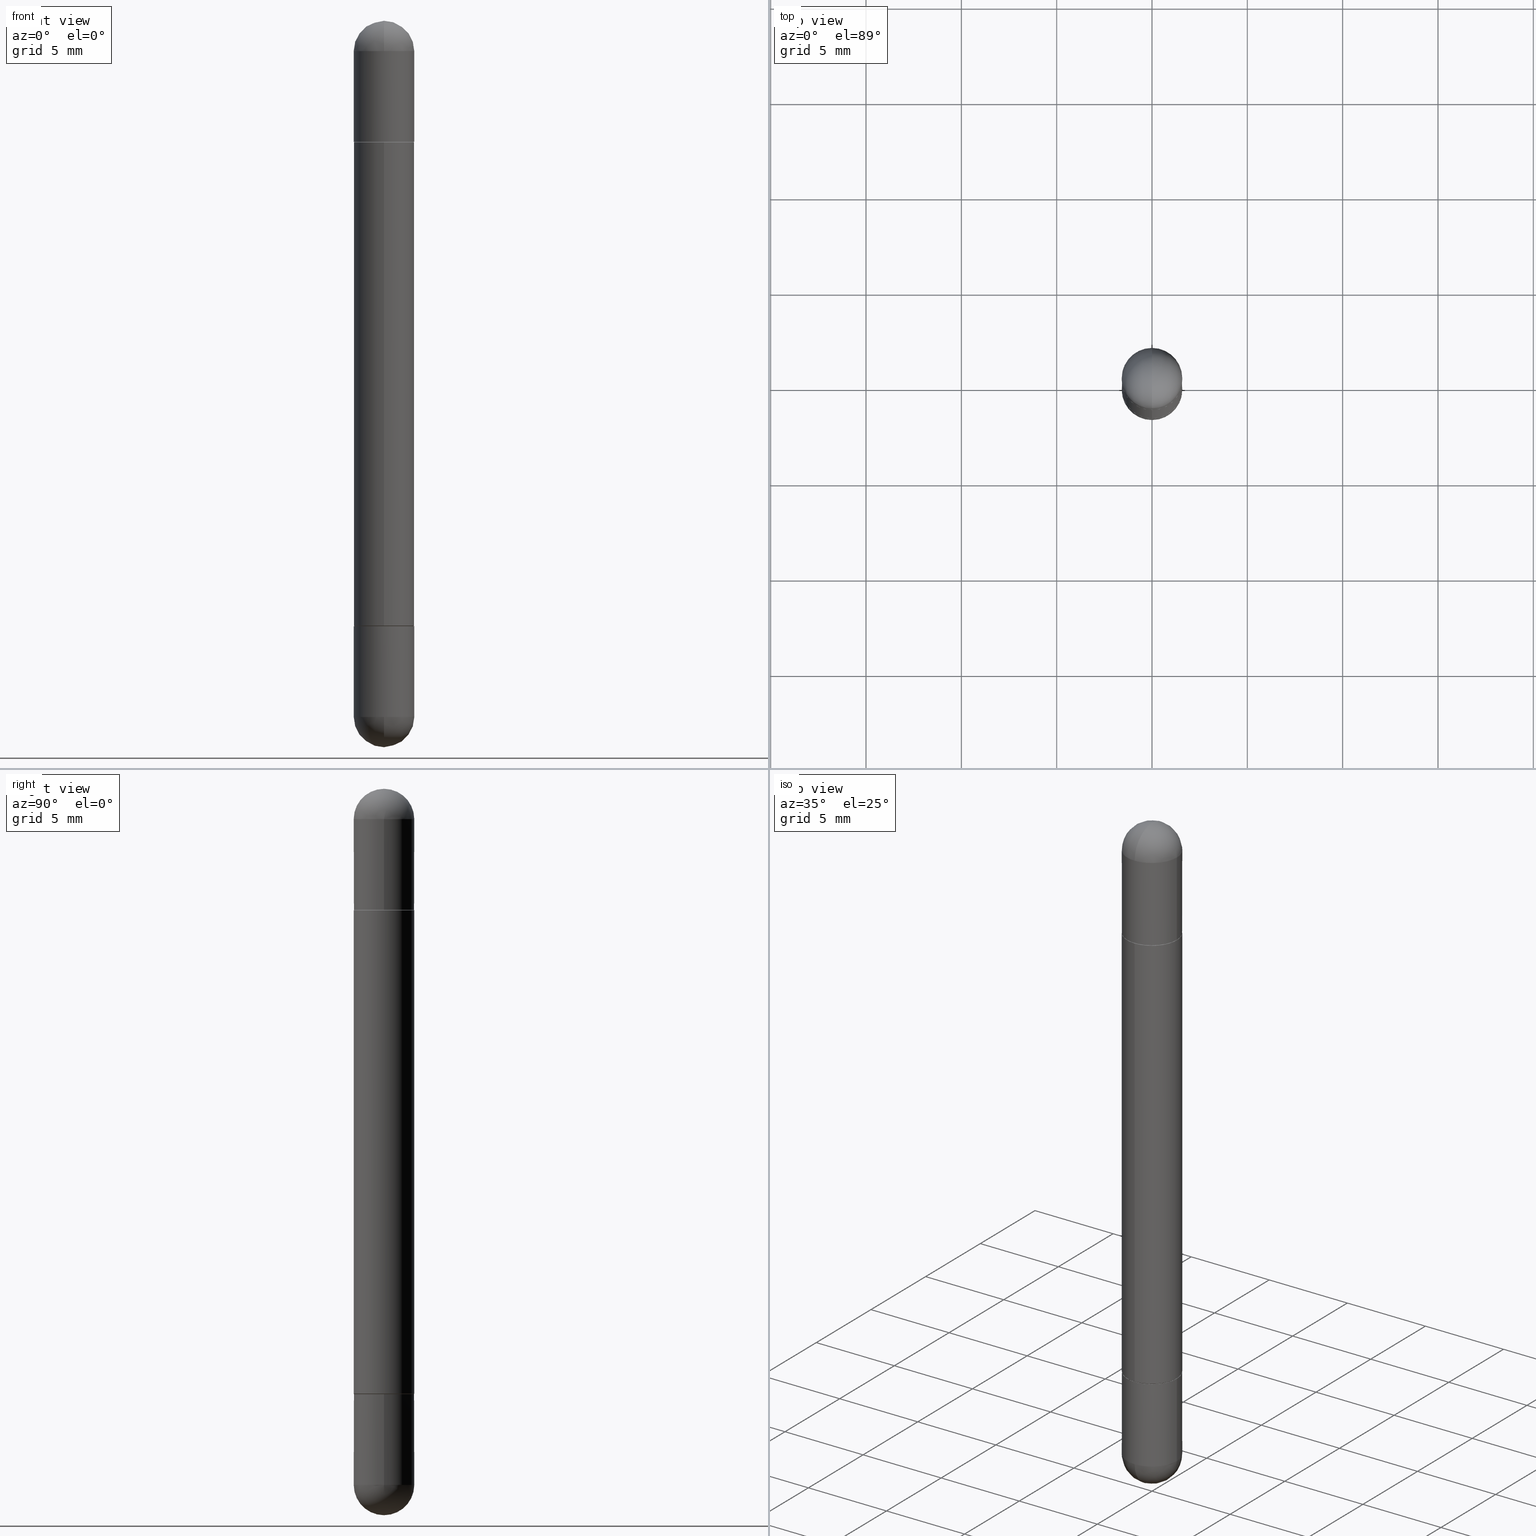
[diagram: canonical four-view strip — front | top / right | iso, engineering-drawing reading convention]
A machine part, canonical four-view strip (front | top / right | iso — engineering-drawing reading convention). The complete STEP part file that produces these views, byte-faithful:
ISO-10303-21;
HEADER;
FILE_DESCRIPTION (( 'STEP AP203' ),
    '1' );
FILE_NAME ('31454.STEP',
    '2024-03-01T12:41:56',
    ( '' ),
    ( '' ),
    'SwSTEP 2.0',
    'SolidWorks 2023',
    '' );
FILE_SCHEMA (( 'CONFIG_CONTROL_DESIGN' ));
ENDSEC;

DATA;
#1 = DIRECTION ( 'NONE',  ( 1.000000000000000000, -6.982962677686261189E-15, 0.000000000000000000 ) ) ;
#2 = DIRECTION ( 'NONE',  ( -2.436379544779364188E-29, 3.504497678504843600E-15, -1.000000000000000000 ) ) ;
#3 = ORIENTED_EDGE ( 'NONE', *, *, #719, .T. ) ;
#4 = FACE_OUTER_BOUND ( 'NONE', #203, .T. ) ;
#5 = DIRECTION ( 'NONE',  ( 1.000000000000000000, -6.982962677686261189E-15, 0.000000000000000000 ) ) ;
#6 = CIRCLE ( 'NONE', #219, 0.06150000000000003381 ) ;
#7 = ADVANCED_FACE ( 'NONE', ( #225 ), #217, .T. ) ;
#8 = CONICAL_SURFACE ( 'NONE', #459, 0.06150000000000003381, 0.7853981633974995713 ) ;
#9 = EDGE_LOOP ( 'NONE', ( #450, #21, #252, #15 ) ) ;
#10 = DIRECTION ( 'NONE',  ( 1.000000000000000000, -6.982962677686261189E-15, 0.000000000000000000 ) ) ;
#11 = VECTOR ( 'NONE', #733, 39.37007874015748143 ) ;
#12 = EDGE_LOOP ( 'NONE', ( #341, #492, #801, #3 ) ) ;
#13 = CLOSED_SHELL ( 'NONE', ( #689, #657, #553, #381, #622 ) ) ;
#14 = EDGE_CURVE ( 'NONE', #268, #259, #154, .T. ) ;
#15 = ORIENTED_EDGE ( 'NONE', *, *, #193, .F. ) ;
#16 = DIRECTION ( 'NONE',  ( -2.436379544779364188E-29, 3.504497678504843600E-15, 1.000000000000000000 ) ) ;
#17 = ORIENTED_EDGE ( 'NONE', *, *, #438, .T. ) ;
#18 = ORIENTED_EDGE ( 'NONE', *, *, #344, .T. ) ;
#19 = DIRECTION ( 'NONE',  ( -2.445468806185136597E-29, 3.491481338843145583E-15, 1.000000000000000000 ) ) ;
#20 = EDGE_LOOP ( 'NONE', ( #656, #167, #17, #260 ) ) ;
#21 = ORIENTED_EDGE ( 'NONE', *, *, #299, .T. ) ;
#22 = EDGE_CURVE ( 'NONE', #753, #93, #451, .T. ) ;
#23 = CARTESIAN_POINT ( 'NONE',  ( 3.515361408891134418E-29, -5.019004424587023131E-15, -1.437500000000000222 ) ) ;
#24 = ORIENTED_EDGE ( 'NONE', *, *, #146, .F. ) ;
#25 = CIRCLE ( 'NONE', #470, 0.06250000000000001388 ) ;
#26 = AXIS2_PLACEMENT_3D ( 'NONE', #334, #726, #350 ) ;
#27 = CYLINDRICAL_SURFACE ( 'NONE', #503, 0.06250000000000001388 ) ;
#28 = CARTESIAN_POINT ( 'NONE',  ( 3.045474430974205165E-29, -4.380622098131054598E-15, -0.2500000000000003331 ) ) ;
#29 = ADVANCED_BREP_SHAPE_REPRESENTATION ( '31454', ( #604, #338, #46, #596, #60, #587 ), #126 ) ;
#30 = DIRECTION ( 'NONE',  ( -2.445468806185136597E-29, 3.491481338843145583E-15, 1.000000000000000000 ) ) ;
#31 = LINE ( 'NONE', #280, #693 ) ;
#32 = DIRECTION ( 'NONE',  ( -2.445468806185136597E-29, 3.491481338843145583E-15, -1.000000000000000000 ) ) ;
#33 = VERTEX_POINT ( 'NONE', #168 ) ;
#34 = AXIS2_PLACEMENT_3D ( 'NONE', #205, #699, #79 ) ;
#35 = LOCAL_TIME ( 7, 41, 56.00000000000000000, #249 ) ;
#36 = DIRECTION ( 'NONE',  ( -2.445468806185136597E-29, 3.491481338843145583E-15, 1.000000000000000000 ) ) ;
#37 = VERTEX_POINT ( 'NONE', #793 ) ;
#38 = VERTEX_POINT ( 'NONE', #401 ) ;
#39 = PRODUCT_DEFINITION_SHAPE ( 'NONE', 'NONE',  #783 ) ;
#40 = DIRECTION ( 'NONE',  ( -2.436379544779364188E-29, 3.504497678504843600E-15, -1.000000000000000000 ) ) ;
#41 = ORIENTED_EDGE ( 'NONE', *, *, #536, .T. ) ;
#42 = CARTESIAN_POINT ( 'NONE',  ( 3.045474430974205165E-29, -4.380622098131054598E-15, -1.250000000000000000 ) ) ;
#43 = DIRECTION ( 'NONE',  ( -2.436379544779364188E-29, 3.504497678504843600E-15, -1.000000000000000000 ) ) ;
#44 = VERTEX_POINT ( 'NONE', #523 ) ;
#45 = DIRECTION ( 'NONE',  ( -2.445468806185136597E-29, 3.491481338843145583E-15, 1.000000000000000000 ) ) ;
#46 = MANIFOLD_SOLID_BREP ( 'Mirror4[3]', #53 ) ;
#47 = EDGE_CURVE ( 'NONE', #71, #81, #532, .T. ) ;
#48 = AXIS2_PLACEMENT_3D ( 'NONE', #460, #403, #537 ) ;
#49 = AXIS2_PLACEMENT_3D ( 'NONE', #143, #780, #153 ) ;
#50 = CARTESIAN_POINT ( 'NONE',  ( 3.056836007731421306E-29, -4.364351673553932471E-15, -0.2500000000000003331 ) ) ;
#51 = FACE_OUTER_BOUND ( 'NONE', #390, .T. ) ;
#52 =( NAMED_UNIT ( * ) SI_UNIT ( $, .STERADIAN. ) SOLID_ANGLE_UNIT ( ) );
#53 = CLOSED_SHELL ( 'NONE', ( #474, #389, #7, #701, #67 ) ) ;
#54 = LINE ( 'NONE', #165, #180 ) ;
#55 = DIRECTION ( 'NONE',  ( -6.982962677686265922E-15, -1.000000000000000000, -4.370956789862813261E-15 ) ) ;
#56 = CARTESIAN_POINT ( 'NONE',  ( -4.294522046776751361E-16, -0.06150000000000441225, -1.249999999999999778 ) ) ;
#57 = FACE_OUTER_BOUND ( 'NONE', #624, .T. ) ;
#58 = DIRECTION ( 'NONE',  ( -6.982962677686265922E-15, -1.000000000000000000, -3.331521943493002126E-15 ) ) ;
#59 = DIRECTION ( 'NONE',  ( -6.982962677686265922E-15, -1.000000000000000000, -3.504497678504843994E-15 ) ) ;
#60 = MANIFOLD_SOLID_BREP ( 'Combine1', #710 ) ;
#61 = AXIS2_PLACEMENT_3D ( 'NONE', #131, #515, #265 ) ;
#62 = LINE ( 'NONE', #304, #601 ) ;
#63 = DIRECTION ( 'NONE',  ( -6.982962677686265922E-15, -1.000000000000000000, 4.442029257990669764E-15 ) ) ;
#64 = CARTESIAN_POINT ( 'NONE',  ( 3.184241630977248732E-29, -5.493186792727072638E-15, -0.06250000000000022204 ) ) ;
#65 = CARTESIAN_POINT ( 'NONE',  ( 3.045474430974205165E-29, -4.380622098131054598E-15, -1.250000000000000000 ) ) ;
#66 = EDGE_CURVE ( 'NONE', #580, #149, #427, .T. ) ;
#67 = ADVANCED_FACE ( 'NONE', ( #461 ), #727, .T. ) ;
#68 = CC_DESIGN_PERSON_AND_ORGANIZATION_ASSIGNMENT ( #409, #476, ( #641 ) ) ;
#69 = ORIENTED_EDGE ( 'NONE', *, *, #721, .F. ) ;
#70 = CARTESIAN_POINT ( 'NONE',  ( -4.364351673553924090E-16, -0.06250000000000011102, -1.500000000000000666 ) ) ;
#71 = VERTEX_POINT ( 'NONE', #465 ) ;
#72 = EDGE_CURVE ( 'NONE', #149, #580, #755, .T. ) ;
#73 = AXIS2_PLACEMENT_3D ( 'NONE', #317, #388, #511 ) ;
#74 = VERTEX_POINT ( 'NONE', #725 ) ;
#75 = LINE ( 'NONE', #70, #234 ) ;
#76 = AXIS2_PLACEMENT_3D ( 'NONE', #395, #785, #224 ) ;
#77 = VERTEX_POINT ( 'NONE', #160 ) ;
#78 = ORIENTED_EDGE ( 'NONE', *, *, #739, .T. ) ;
#79 = DIRECTION ( 'NONE',  ( -6.982962677686265922E-15, -1.000000000000000000, -3.331521943493002126E-15 ) ) ;
#80 = APPROVAL ( #244, 'UNSPECIFIED' ) ;
#81 = VERTEX_POINT ( 'NONE', #404 ) ;
#82 = DIRECTION ( 'NONE',  ( 4.851104656541212766E-15, 0.7071067811865862085, -0.7071067811865088260 ) ) ;
#83 = ORIENTED_EDGE ( 'NONE', *, *, #226, .T. ) ;
#84 = DIRECTION ( 'NONE',  ( -0.000000000000000000, -0.000000000000000000, -1.000000000000000000 ) ) ;
#85 = AXIS2_PLACEMENT_3D ( 'NONE', #561, #111, #549 ) ;
#86 = EDGE_LOOP ( 'NONE', ( #645, #512, #593, #110 ) ) ;
#87 = APPROVAL_PERSON_ORGANIZATION ( #807, #80, #745 ) ;
#88 = CYLINDRICAL_SURFACE ( 'NONE', #164, 0.06250000000000011102 ) ;
#89 = DIRECTION ( 'NONE',  ( 2.436379544779364188E-29, -3.504497678504843600E-15, 1.000000000000000000 ) ) ;
#90 = ORIENTED_EDGE ( 'NONE', *, *, #653, .T. ) ;
#91 = APPROVAL ( #305, 'UNSPECIFIED' ) ;
#92 = CARTESIAN_POINT ( 'NONE',  ( 0.000000000000000000, 0.000000000000000000, -1.500000000000000444 ) ) ;
#93 = VERTEX_POINT ( 'NONE', #664 ) ;
#94 = EDGE_CURVE ( 'NONE', #268, #456, #144, .T. ) ;
#95 = CARTESIAN_POINT ( 'NONE',  ( 4.287811248607524250E-16, 0.06249999999999581585, -0.2510000000000002229 ) ) ;
#96 = ADVANCED_FACE ( 'NONE', ( #608 ), #584, .T. ) ;
#97 = DIRECTION ( 'NONE',  ( 2.436379544779364188E-29, -3.504497678504843600E-15, 1.000000000000000000 ) ) ;
#98 = ORIENTED_EDGE ( 'NONE', *, *, #574, .F. ) ;
#99 = AXIS2_PLACEMENT_3D ( 'NONE', #478, #680, #55 ) ;
#100 = CIRCLE ( 'NONE', #796, 0.06250000000000020817 ) ;
#101 = CARTESIAN_POINT ( 'NONE',  ( 3.045474430974205165E-29, -4.380622098131054598E-15, -0.2500000000000003331 ) ) ;
#102 = DIRECTION ( 'NONE',  ( -2.445468806185136597E-29, 3.491481338843145583E-15, -1.000000000000000000 ) ) ;
#103 = ORIENTED_EDGE ( 'NONE', *, *, #14, .T. ) ;
#104 = ORIENTED_EDGE ( 'NONE', *, *, #186, .F. ) ;
#105 = DIRECTION ( 'NONE',  ( 1.000000000000000000, -6.982962677686267499E-15, 0.000000000000000000 ) ) ;
#106 = APPROVAL_STATUS ( 'not_yet_approved' ) ;
#107 = ORIENTED_EDGE ( 'NONE', *, *, #739, .F. ) ;
#108 = ORIENTED_EDGE ( 'NONE', *, *, #326, .F. ) ;
#109 = DIRECTION ( 'NONE',  ( 2.445468806185136597E-29, -3.491481338843145583E-15, 1.000000000000000000 ) ) ;
#110 = ORIENTED_EDGE ( 'NONE', *, *, #802, .F. ) ;
#111 = DIRECTION ( 'NONE',  ( -2.445468806185136597E-29, 3.491481338843145583E-15, 1.000000000000000000 ) ) ;
#112 = DIRECTION ( 'NONE',  ( -2.436379544779363627E-29, 3.504497678504843994E-15, -1.000000000000000000 ) ) ;
#113 = VECTOR ( 'NONE', #743, 39.37007874015748143 ) ;
#114 = CARTESIAN_POINT ( 'NONE',  ( 3.184241630977248732E-29, -5.493186792727072638E-15, -0.06250000000000022204 ) ) ;
#115 = COORDINATED_UNIVERSAL_TIME_OFFSET ( 5, 0, .BEHIND. ) ;
#116 = CARTESIAN_POINT ( 'NONE',  ( -0.06250000000000001388, 4.287811248607208706E-16, -1.500000000000000444 ) ) ;
#117 = CARTESIAN_POINT ( 'NONE',  ( 3.515361408891134418E-29, -5.019004424587023131E-15, -0.06250000000000022204 ) ) ;
#118 = ORIENTED_EDGE ( 'NONE', *, *, #226, .F. ) ;
#119 = FACE_OUTER_BOUND ( 'NONE', #200, .T. ) ;
#120 = DIRECTION ( 'NONE',  ( -2.445468806185136597E-29, 3.491481338843145583E-15, 1.000000000000000000 ) ) ;
#121 = CARTESIAN_POINT ( 'NONE',  ( 0.06250000000000001388, -4.800786840909324141E-15, -0.2500000000000003331 ) ) ;
#122 = DIRECTION ( 'NONE',  ( -2.436379544779364188E-29, 3.504497678504843600E-15, -1.000000000000000000 ) ) ;
#123 = CIRCLE ( 'NONE', #676, 0.06250000000000022204 ) ;
#124 = CIRCLE ( 'NONE', #263, 0.06250000000000001388 ) ;
#125 = DIRECTION ( 'NONE',  ( 6.860497997771530774E-15, 1.000000000000000000, 0.000000000000000000 ) ) ;
#126 =( GEOMETRIC_REPRESENTATION_CONTEXT ( 3 ) GLOBAL_UNCERTAINTY_ASSIGNED_CONTEXT ( ( #230 ) ) GLOBAL_UNIT_ASSIGNED_CONTEXT ( ( #191, #426, #52 ) ) REPRESENTATION_CONTEXT ( 'NONE', 'WORKASPACE' ) );
#127 = CARTESIAN_POINT ( 'NONE',  ( 3.056836007731421306E-29, -4.364351673553932471E-15, -0.2500000000000003331 ) ) ;
#128 = EDGE_CURVE ( 'NONE', #93, #753, #6, .T. ) ;
#129 = CARTESIAN_POINT ( 'NONE',  ( -0.06250000000000001388, -4.262896924209757473E-15, -0.06250000000000022204 ) ) ;
#130 = ORIENTED_EDGE ( 'NONE', *, *, #94, .F. ) ;
#131 = CARTESIAN_POINT ( 'NONE',  ( 3.184241630977248732E-29, -5.493186792727072638E-15, -0.06250000000000022204 ) ) ;
#132 = EDGE_CURVE ( 'NONE', #580, #81, #31, .T. ) ;
#133 = ORIENTED_EDGE ( 'NONE', *, *, #705, .T. ) ;
#134 = SPHERICAL_SURFACE ( 'NONE', #347, 0.06250000000000022204 ) ;
#135 = ORIENTED_EDGE ( 'NONE', *, *, #14, .F. ) ;
#136 = EDGE_LOOP ( 'NONE', ( #290, #133, #318, #118 ) ) ;
#137 = CIRCLE ( 'NONE', #250, 0.06250000000000001388 ) ;
#138 = DIRECTION ( 'NONE',  ( 2.445468806185136597E-29, -3.491481338843145583E-15, 1.000000000000000000 ) ) ;
#139 = CC_DESIGN_APPROVAL ( #80, ( #783 ) ) ;
#140 = ORIENTED_EDGE ( 'NONE', *, *, #454, .T. ) ;
#141 = DIRECTION ( 'NONE',  ( -6.982962677686265922E-15, -1.000000000000000000, 4.442029257990669764E-15 ) ) ;
#142 = ORIENTED_EDGE ( 'NONE', *, *, #654, .T. ) ;
#143 = CARTESIAN_POINT ( 'NONE',  ( 3.056836007731421306E-29, -4.364351673553932471E-15, -0.2500000000000003331 ) ) ;
#144 = CIRCLE ( 'NONE', #771, 0.06150000000000003381 ) ;
#145 = EDGE_LOOP ( 'NONE', ( #576, #715 ) ) ;
#146 = EDGE_CURVE ( 'NONE', #506, #571, #204, .T. ) ;
#147 = FACE_OUTER_BOUND ( 'NONE', #229, .T. ) ;
#148 = CIRCLE ( 'NONE', #613, 0.06250000000000020817 ) ;
#149 = VERTEX_POINT ( 'NONE', #306 ) ;
#150 = CIRCLE ( 'NONE', #294, 0.06150000000000003381 ) ;
#151 = VERTEX_POINT ( 'NONE', #498 ) ;
#152 = EDGE_CURVE ( 'NONE', #516, #259, #329, .T. ) ;
#153 = DIRECTION ( 'NONE',  ( 1.000000000000000000, -6.982962677686269077E-15, 0.000000000000000000 ) ) ;
#154 = LINE ( 'NONE', #790, #212 ) ;
#155 = EDGE_CURVE ( 'NONE', #777, #412, #243, .T. ) ;
#156 = CARTESIAN_POINT ( 'NONE',  ( -0.06250000000000001388, -4.247588839220414790E-15, -1.250000000000000000 ) ) ;
#157 = DIRECTION ( 'NONE',  ( -6.982962677686265922E-15, -1.000000000000000000, -3.278217592397104818E-15 ) ) ;
#158 = CARTESIAN_POINT ( 'NONE',  ( 0.06250000000000001388, -4.800786840909324141E-15, -1.250000000000000000 ) ) ;
#159 = PRODUCT ( '31454', '31454', '', ( #479 ) ) ;
#160 = CARTESIAN_POINT ( 'NONE',  ( 0.06250000000000001388, -4.800786840909324141E-15, -0.2500000000000003331 ) ) ;
#161 = ORIENTED_EDGE ( 'NONE', *, *, #631, .F. ) ;
#162 = ADVANCED_FACE ( 'NONE', ( #416 ), #616, .T. ) ;
#163 = AXIS2_PLACEMENT_3D ( 'NONE', #302, #768, #270 ) ;
#164 = AXIS2_PLACEMENT_3D ( 'NONE', #346, #40, #534 ) ;
#165 = CARTESIAN_POINT ( 'NONE',  ( 0.06250000000000001388, -4.364351673553918173E-16, 3.047610484872460571E-30 ) ) ;
#166 = DATE_TIME_ROLE ( 'classification_date' ) ;
#167 = ORIENTED_EDGE ( 'NONE', *, *, #128, .F. ) ;
#168 = CARTESIAN_POINT ( 'NONE',  ( 4.364351673554259849E-16, 0.06249999999999485828, -1.437500000000000444 ) ) ;
#169 = ORIENTED_EDGE ( 'NONE', *, *, #193, .T. ) ;
#170 = CARTESIAN_POINT ( 'NONE',  ( 3.515361408891134418E-29, -5.019004424587023131E-15, -0.06250000000000022204 ) ) ;
#171 = ORIENTED_EDGE ( 'NONE', *, *, #508, .T. ) ;
#172 = DIRECTION ( 'NONE',  ( 2.445468806185136597E-29, -3.491481338843145583E-15, 1.000000000000000000 ) ) ;
#173 = DIRECTION ( 'NONE',  ( -2.436379544779364188E-29, 3.504497678504843600E-15, 1.000000000000000000 ) ) ;
#174 = DIRECTION ( 'NONE',  ( -2.445468806185136597E-29, 3.491481338843145583E-15, -1.000000000000000000 ) ) ;
#175 = COORDINATED_UNIVERSAL_TIME_OFFSET ( 5, 0, .BEHIND. ) ;
#176 = DIRECTION ( 'NONE',  ( 1.000000000000000000, -6.860497997771530774E-15, -4.840798879624142912E-29 ) ) ;
#177 = CARTESIAN_POINT ( 'NONE',  ( 0.06250000000000001388, -5.128113216425869076E-15, -1.437500000000000222 ) ) ;
#178 = ADVANCED_FACE ( 'NONE', ( #372 ), #810, .T. ) ;
#179 = AXIS2_PLACEMENT_3D ( 'NONE', #64, #323, #327 ) ;
#180 = VECTOR ( 'NONE', #418, 39.37007874015748143 ) ;
#181 = VERTEX_POINT ( 'NONE', #425 ) ;
#182 = PLANE ( 'NONE',  #447 ) ;
#183 = PERSON_AND_ORGANIZATION_ROLE ( 'creator' ) ;
#184 = ORIENTED_EDGE ( 'NONE', *, *, #769, .F. ) ;
#185 = SPHERICAL_SURFACE ( 'NONE', #813, 0.06250000000000022204 ) ;
#186 = EDGE_CURVE ( 'NONE', #520, #770, #795, .T. ) ;
#187 = DIRECTION ( 'NONE',  ( -1.000000000000000000, 0.000000000000000000, 0.000000000000000000 ) ) ;
#188 = EDGE_LOOP ( 'NONE', ( #108, #104 ) ) ;
#189 = EDGE_LOOP ( 'NONE', ( #211, #533 ) ) ;
#190 = DIRECTION ( 'NONE',  ( -2.445468806185136877E-29, 3.491481338843145188E-15, -1.000000000000000000 ) ) ;
#191 =( CONVERSION_BASED_UNIT ( 'INCH', #756 ) LENGTH_UNIT ( ) NAMED_UNIT ( #736 ) );
#192 = DIRECTION ( 'NONE',  ( -2.436379544779363627E-29, 3.504497678504843994E-15, 1.000000000000000000 ) ) ;
#193 = EDGE_CURVE ( 'NONE', #366, #794, #434, .T. ) ;
#194 = DIRECTION ( 'NONE',  ( 6.982962677686266711E-15, 1.000000000000000000, 0.000000000000000000 ) ) ;
#195 = AXIS2_PLACEMENT_3D ( 'NONE', #279, #462, #469 ) ;
#196 = CIRCLE ( 'NONE', #236, 0.06250000000000001388 ) ;
#197 = EDGE_CURVE ( 'NONE', #443, #198, #124, .T. ) ;
#198 = VERTEX_POINT ( 'NONE', #612 ) ;
#199 = DIRECTION ( 'NONE',  ( 1.000000000000000000, -6.982962677686261189E-15, 0.000000000000000000 ) ) ;
#200 = EDGE_LOOP ( 'NONE', ( #214, #535, #78, #161, #184 ) ) ;
#201 = FACE_OUTER_BOUND ( 'NONE', #189, .T. ) ;
#202 = ORIENTED_EDGE ( 'NONE', *, *, #722, .T. ) ;
#203 = EDGE_LOOP ( 'NONE', ( #383, #107 ) ) ;
#204 = CIRCLE ( 'NONE', #303, 0.06250000000000001388 ) ;
#205 = CARTESIAN_POINT ( 'NONE',  ( 3.045474430974205165E-29, -4.380622098131054598E-15, -0.2500000000000003331 ) ) ;
#206 = EDGE_LOOP ( 'NONE', ( #791, #686 ) ) ;
#207 = ORIENTED_EDGE ( 'NONE', *, *, #530, .T. ) ;
#208 = AXIS2_PLACEMENT_3D ( 'NONE', #642, #209, #575 ) ;
#209 = DIRECTION ( 'NONE',  ( 2.436379544779364188E-29, -3.504497678504843600E-15, 1.000000000000000000 ) ) ;
#210 = AXIS2_PLACEMENT_3D ( 'NONE', #65, #173, #63 ) ;
#211 = ORIENTED_EDGE ( 'NONE', *, *, #215, .T. ) ;
#212 = VECTOR ( 'NONE', #652, 39.37007874015748854 ) ;
#213 = DIRECTION ( 'NONE',  ( -4.937700262164799689E-15, -0.7071067811865812125, -0.7071067811865135999 ) ) ;
#214 = ORIENTED_EDGE ( 'NONE', *, *, #454, .F. ) ;
#215 = EDGE_CURVE ( 'NONE', #571, #506, #487, .T. ) ;
#216 = DIRECTION ( 'NONE',  ( 1.000000000000000000, -6.982962677686267499E-15, 4.876176775795935793E-29 ) ) ;
#217 = SPHERICAL_SURFACE ( 'NONE', #531, 0.06250000000000022204 ) ;
#218 = LINE ( 'NONE', #792, #264 ) ;
#219 = AXIS2_PLACEMENT_3D ( 'NONE', #28, #720, #592 ) ;
#220 = EDGE_CURVE ( 'NONE', #198, #770, #494, .T. ) ;
#221 = CIRCLE ( 'NONE', #208, 0.06250000000000020817 ) ;
#222 = DIRECTION ( 'NONE',  ( -2.445468806185136597E-29, 3.491481338843145583E-15, 1.000000000000000000 ) ) ;
#223 = AXIS2_PLACEMENT_3D ( 'NONE', #758, #192, #564 ) ;
#224 = DIRECTION ( 'NONE',  ( 6.982962677686266711E-15, 1.000000000000000000, 3.551402391763529759E-15 ) ) ;
#225 = FACE_OUTER_BOUND ( 'NONE', #12, .T. ) ;
#226 = EDGE_CURVE ( 'NONE', #33, #181, #25, .T. ) ;
#227 = CYLINDRICAL_SURFACE ( 'NONE', #615, 0.06250000000000001388 ) ;
#228 = DIRECTION ( 'NONE',  ( 1.000000000000000000, -6.982962677686267499E-15, 0.000000000000000000 ) ) ;
#229 = EDGE_LOOP ( 'NONE', ( #704, #90, #367, #509, #638 ) ) ;
#230 = UNCERTAINTY_MEASURE_WITH_UNIT (LENGTH_MEASURE( 1.000000000000000082E-05 ), #191, 'distance_accuracy_value', 'NONE');
#231 = DIRECTION ( 'NONE',  ( 4.851104656541212766E-15, 0.7071067811865862085, -0.7071067811865088260 ) ) ;
#232 = COORDINATED_UNIVERSAL_TIME_OFFSET ( 5, 0, .BEHIND. ) ;
#233 = CARTESIAN_POINT ( 'NONE',  ( 3.043038051429425762E-29, -4.377117600452549046E-15, -0.2510000000000003895 ) ) ;
#234 = VECTOR ( 'NONE', #455, 39.37007874015748143 ) ;
#235 = ORGANIZATION ( 'UNSPECIFIED', 'UNSPECIFIED', '' ) ;
#236 = AXIS2_PLACEMENT_3D ( 'NONE', #529, #36, #342 ) ;
#237 = CARTESIAN_POINT ( 'NONE',  ( 3.184241630977248732E-29, -5.493186792727072638E-15, -1.437500000000000222 ) ) ;
#238 = DIRECTION ( 'NONE',  ( 1.000000000000000000, -6.982962677686265922E-15, 4.883557194083112340E-29 ) ) ;
#239 = DESIGN_CONTEXT ( 'detailed design', #599, 'design' ) ;
#240 = SPHERICAL_SURFACE ( 'NONE', #723, 0.06250000000000022204 ) ;
#241 = ADVANCED_FACE ( 'NONE', ( #486 ), #185, .T. ) ;
#242 = PERSON_AND_ORGANIZATION ( #453, #235 ) ;
#243 = LINE ( 'NONE', #116, #609 ) ;
#244 = APPROVAL_STATUS ( 'not_yet_approved' ) ;
#245 = CARTESIAN_POINT ( 'NONE',  ( 4.364351673554222871E-16, 0.06249999999999565625, -0.2500000000000000555 ) ) ;
#246 = VERTEX_POINT ( 'NONE', #357 ) ;
#247 = CARTESIAN_POINT ( 'NONE',  ( 0.06250000000000001388, -4.364351673553918173E-16, -1.500000000000000444 ) ) ;
#248 = ADVANCED_FACE ( 'NONE', ( #817 ), #446, .T. ) ;
#249 = COORDINATED_UNIVERSAL_TIME_OFFSET ( 5, 0, .BEHIND. ) ;
#250 = AXIS2_PLACEMENT_3D ( 'NONE', #23, #19, #199 ) ;
#251 = CONICAL_SURFACE ( 'NONE', #488, 0.06150000000000003381, 0.7853981633974995713 ) ;
#252 = ORIENTED_EDGE ( 'NONE', *, *, #536, .F. ) ;
#253 = DIRECTION ( 'NONE',  ( -2.445468806185136877E-29, 3.491481338843145188E-15, -1.000000000000000000 ) ) ;
#254 = COORDINATED_UNIVERSAL_TIME_OFFSET ( 5, 0, .BEHIND. ) ;
#255 = CARTESIAN_POINT ( 'NONE',  ( -4.294522046776751361E-16, -0.06150000000000441225, -0.2500000000000005551 ) ) ;
#256 = CARTESIAN_POINT ( 'NONE',  ( -4.364351673553924090E-16, -0.06250000000000011102, -1.500000000000000666 ) ) ;
#257 = DIRECTION ( 'NONE',  ( 2.436379544779364188E-29, -3.504497678504843600E-15, 1.000000000000000000 ) ) ;
#258 = PLANE ( 'NONE',  #333 ) ;
#259 = VERTEX_POINT ( 'NONE', #568 ) ;
#260 = ORIENTED_EDGE ( 'NONE', *, *, #72, .T. ) ;
#261 = CARTESIAN_POINT ( 'NONE',  ( 4.364351673554222871E-16, 0.06249999999999565625, -0.2500000000000000555 ) ) ;
#262 = ORIENTED_EDGE ( 'NONE', *, *, #442, .T. ) ;
#263 = AXIS2_PLACEMENT_3D ( 'NONE', #738, #620, #687 ) ;
#264 = VECTOR ( 'NONE', #231, 39.37007874015748143 ) ;
#265 = DIRECTION ( 'NONE',  ( -6.982962677686266711E-15, -1.000000000000000000, 0.000000000000000000 ) ) ;
#266 = EDGE_LOOP ( 'NONE', ( #700, #262 ) ) ;
#267 = CARTESIAN_POINT ( 'NONE',  ( -0.06250000000000001388, -4.262896924209756684E-15, -0.2500000000000003331 ) ) ;
#268 = VERTEX_POINT ( 'NONE', #255 ) ;
#269 = ORIENTED_EDGE ( 'NONE', *, *, #452, .T. ) ;
#270 = DIRECTION ( 'NONE',  ( 1.000000000000000000, -6.982962677686269077E-15, 0.000000000000000000 ) ) ;
#271 = ORIENTED_EDGE ( 'NONE', *, *, #155, .F. ) ;
#272 = CIRCLE ( 'NONE', #629, 0.06150000000000003381 ) ;
#273 = DIRECTION ( 'NONE',  ( 2.445468806185136597E-29, -3.491481338843145583E-15, 1.000000000000000000 ) ) ;
#274 = VECTOR ( 'NONE', #495, 39.37007874015748143 ) ;
#275 = ORIENTED_EDGE ( 'NONE', *, *, #72, .F. ) ;
#276 = DIRECTION ( 'NONE',  ( 1.000000000000000000, -6.982962677686267499E-15, 0.000000000000000000 ) ) ;
#277 = ORIENTED_EDGE ( 'NONE', *, *, #778, .F. ) ;
#278 = EDGE_CURVE ( 'NONE', #44, #665, #586, .T. ) ;
#279 = CARTESIAN_POINT ( 'NONE',  ( 4.364351673554222871E-16, 0.06249999999999565625, -1.250000000000000222 ) ) ;
#280 = CARTESIAN_POINT ( 'NONE',  ( 4.287811248607214129E-16, 0.06250000000000011102, -1.500000000000000222 ) ) ;
#281 = DIRECTION ( 'NONE',  ( -1.000000000000000000, 0.000000000000000000, 0.000000000000000000 ) ) ;
#282 = CONICAL_SURFACE ( 'NONE', #34, 0.06150000000000003381, 0.7853981633974995713 ) ;
#283 = ORIENTED_EDGE ( 'NONE', *, *, #606, .T. ) ;
#284 = CIRCLE ( 'NONE', #697, 0.06250000000000001388 ) ;
#285 = CC_DESIGN_PERSON_AND_ORGANIZATION_ASSIGNMENT ( #353, #183, ( #783 ) ) ;
#286 = DIRECTION ( 'NONE',  ( -6.982962677686265922E-15, -1.000000000000000000, -3.331521943493002126E-15 ) ) ;
#287 = ORIENTED_EDGE ( 'NONE', *, *, #152, .T. ) ;
#288 = AXIS2_PLACEMENT_3D ( 'NONE', #396, #102, #228 ) ;
#289 = CARTESIAN_POINT ( 'NONE',  ( 3.339755826017505569E-29, -5.707577355157435366E-15, 0.000000000000000000 ) ) ;
#290 = ORIENTED_EDGE ( 'NONE', *, *, #299, .F. ) ;
#291 = DIRECTION ( 'NONE',  ( 0.000000000000000000, 0.000000000000000000, 1.000000000000000000 ) ) ;
#292 = CALENDAR_DATE ( 2024, 1, 3 ) ;
#293 = CARTESIAN_POINT ( 'NONE',  ( 3.043038051429425762E-29, -4.377117600452549046E-15, -0.2510000000000003895 ) ) ;
#294 = AXIS2_PLACEMENT_3D ( 'NONE', #475, #428, #368 ) ;
#295 = DIRECTION ( 'NONE',  ( 2.445468806185136597E-29, -3.491481338843145583E-15, 1.000000000000000000 ) ) ;
#296 = CC_DESIGN_PERSON_AND_ORGANIZATION_ASSIGNMENT ( #297, #419, ( #406 ) ) ;
#297 = PERSON_AND_ORGANIZATION ( #453, #235 ) ;
#298 = CARTESIAN_POINT ( 'NONE',  ( 0.000000000000000000, 0.000000000000000000, -1.500000000000000444 ) ) ;
#299 = EDGE_CURVE ( 'NONE', #151, #33, #123, .T. ) ;
#300 = CYLINDRICAL_SURFACE ( 'NONE', #349, 0.06250000000000001388 ) ;
#301 = DATE_AND_TIME ( #543, #35 ) ;
#302 = CARTESIAN_POINT ( 'NONE',  ( 3.056836007731421306E-29, -4.364351673553932471E-15, -0.2500000000000003331 ) ) ;
#303 = AXIS2_PLACEMENT_3D ( 'NONE', #782, #222, #364 ) ;
#304 = CARTESIAN_POINT ( 'NONE',  ( 0.06250000000000001388, -4.364351673553918173E-16, -1.500000000000000444 ) ) ;
#305 = APPROVAL_STATUS ( 'not_yet_approved' ) ;
#306 = CARTESIAN_POINT ( 'NONE',  ( -4.364351673553627281E-16, -0.06250000000000459355, -0.2510000000000006115 ) ) ;
#307 = DIRECTION ( 'NONE',  ( 1.000000000000000000, -6.982962677686261189E-15, 0.000000000000000000 ) ) ;
#308 = CIRCLE ( 'NONE', #179, 0.06250000000000022204 ) ;
#309 = CIRCLE ( 'NONE', #528, 0.06250000000000011102 ) ;
#310 = LINE ( 'NONE', #667, #385 ) ;
#311 = APPROVAL_DATE_TIME ( #611, #91 ) ;
#312 = CARTESIAN_POINT ( 'NONE',  ( 3.184241630977248732E-29, -5.493186792727072638E-15, -1.437500000000000222 ) ) ;
#313 = ADVANCED_FACE ( 'NONE', ( #51 ), #430, .T. ) ;
#314 = DIRECTION ( 'NONE',  ( 0.000000000000000000, 0.000000000000000000, 1.000000000000000000 ) ) ;
#315 = ORIENTED_EDGE ( 'NONE', *, *, #631, .T. ) ;
#316 = FACE_OUTER_BOUND ( 'NONE', #393, .T. ) ;
#317 = CARTESIAN_POINT ( 'NONE',  ( 3.045474430974205165E-29, -4.380622098131054598E-15, -0.2500000000000003331 ) ) ;
#318 = ORIENTED_EDGE ( 'NONE', *, *, #384, .F. ) ;
#319 = VECTOR ( 'NONE', #82, 39.37007874015748143 ) ;
#320 = CONICAL_SURFACE ( 'NONE', #210, 0.06150000000000003381, 0.7853981633974995713 ) ;
#321 = ORIENTED_EDGE ( 'NONE', *, *, #152, .F. ) ;
#322 = PRODUCT_RELATED_PRODUCT_CATEGORY ( 'detail', '', ( #159 ) ) ;
#323 = DIRECTION ( 'NONE',  ( -1.000000000000000000, 6.982962677686265922E-15, 4.883557194083112340E-29 ) ) ;
#324 = ORIENTED_EDGE ( 'NONE', *, *, #22, .F. ) ;
#325 = ORIENTED_EDGE ( 'NONE', *, *, #197, .T. ) ;
#326 = EDGE_CURVE ( 'NONE', #770, #520, #708, .T. ) ;
#327 = DIRECTION ( 'NONE',  ( -6.982962677686266711E-15, -1.000000000000000000, 0.000000000000000000 ) ) ;
#328 = ORIENTED_EDGE ( 'NONE', *, *, #797, .T. ) ;
#329 = CIRCLE ( 'NONE', #513, 0.06250000000000020817 ) ;
#330 = DIRECTION ( 'NONE',  ( -0.000000000000000000, -0.000000000000000000, -1.000000000000000000 ) ) ;
#331 = ORIENTED_EDGE ( 'NONE', *, *, #66, .F. ) ;
#332 = AXIS2_PLACEMENT_3D ( 'NONE', #298, #122, #696 ) ;
#333 = AXIS2_PLACEMENT_3D ( 'NONE', #621, #112, #59 ) ;
#334 = CARTESIAN_POINT ( 'NONE',  ( 3.515361408891134418E-29, -5.019004424587023131E-15, -0.06250000000000022204 ) ) ;
#335 = CC_DESIGN_APPROVAL ( #556, ( #406 ) ) ;
#336 = LOCAL_TIME ( 7, 41, 56.00000000000000000, #254 ) ;
#337 = ORIENTED_EDGE ( 'NONE', *, *, #505, .F. ) ;
#338 = MANIFOLD_SOLID_BREP ( 'Mirror4[1]', #440 ) ;
#339 = CARTESIAN_POINT ( 'NONE',  ( 0.000000000000000000, 0.000000000000000000, 0.000000000000000000 ) ) ;
#340 = DIRECTION ( 'NONE',  ( -6.982962677686265922E-15, -1.000000000000000000, -3.331521943493002126E-15 ) ) ;
#341 = ORIENTED_EDGE ( 'NONE', *, *, #744, .F. ) ;
#342 = DIRECTION ( 'NONE',  ( 1.000000000000000000, -6.982962677686261189E-15, 0.000000000000000000 ) ) ;
#343 = DIRECTION ( 'NONE',  ( -6.982962677686265922E-15, -1.000000000000000000, -3.331521943493002126E-15 ) ) ;
#344 = EDGE_CURVE ( 'NONE', #456, #516, #633, .T. ) ;
#345 = EDGE_CURVE ( 'NONE', #598, #246, #308, .T. ) ;
#346 = CARTESIAN_POINT ( 'NONE',  ( 0.000000000000000000, 0.000000000000000000, -1.500000000000000444 ) ) ;
#347 = AXIS2_PLACEMENT_3D ( 'NONE', #762, #448, #386 ) ;
#348 = ORIENTED_EDGE ( 'NONE', *, *, #769, .T. ) ;
#349 = AXIS2_PLACEMENT_3D ( 'NONE', #552, #174, #413 ) ;
#350 = DIRECTION ( 'NONE',  ( 1.000000000000000000, -6.982962677686261189E-15, 0.000000000000000000 ) ) ;
#351 = CARTESIAN_POINT ( 'NONE',  ( 3.045474430974205165E-29, -4.380622098131054598E-15, -0.2500000000000003331 ) ) ;
#352 = CARTESIAN_POINT ( 'NONE',  ( 3.045474430974205165E-29, -4.380622098131054598E-15, -0.2500000000000003331 ) ) ;
#353 = PERSON_AND_ORGANIZATION ( #453, #235 ) ;
#354 = CARTESIAN_POINT ( 'NONE',  ( 3.045474430974205165E-29, -4.380622098131054598E-15, -0.2500000000000003331 ) ) ;
#355 = DIRECTION ( 'NONE',  ( -2.445468806185136597E-29, 3.491481338843145583E-15, -1.000000000000000000 ) ) ;
#356 = ORIENTED_EDGE ( 'NONE', *, *, #94, .T. ) ;
#357 = CARTESIAN_POINT ( 'NONE',  ( 4.364351673554259849E-16, 0.06249999999999485828, -0.06250000000000000000 ) ) ;
#358 = CIRCLE ( 'NONE', #49, 0.06250000000000001388 ) ;
#359 = AXIS2_PLACEMENT_3D ( 'NONE', #237, #672, #737 ) ;
#360 = CC_DESIGN_APPROVAL ( #91, ( #641 ) ) ;
#361 = ADVANCED_FACE ( 'NONE', ( #316 ), #282, .T. ) ;
#362 = DIRECTION ( 'NONE',  ( -6.982962677686265922E-15, -1.000000000000000000, -3.331521943493002126E-15 ) ) ;
#363 = APPROVAL_DATE_TIME ( #560, #556 ) ;
#364 = DIRECTION ( 'NONE',  ( 1.000000000000000000, -6.982962677686269077E-15, 0.000000000000000000 ) ) ;
#365 = PERSON_AND_ORGANIZATION ( #453, #235 ) ;
#366 = VERTEX_POINT ( 'NONE', #572 ) ;
#367 = ORIENTED_EDGE ( 'NONE', *, *, #186, .T. ) ;
#368 = DIRECTION ( 'NONE',  ( -6.982962677686265922E-15, -1.000000000000000000, 4.442029257990669764E-15 ) ) ;
#369 = DIRECTION ( 'NONE',  ( 1.000000000000000000, -6.982962677686261189E-15, 0.000000000000000000 ) ) ;
#370 = CARTESIAN_POINT ( 'NONE',  ( 4.253508758618661753E-16, 0.06149999999999564843, -0.2500000000000001110 ) ) ;
#371 = CARTESIAN_POINT ( 'NONE',  ( 0.000000000000000000, 0.000000000000000000, -0.7500000000000002220 ) ) ;
#372 = FACE_OUTER_BOUND ( 'NONE', #799, .T. ) ;
#373 = EDGE_CURVE ( 'NONE', #149, #445, #75, .T. ) ;
#374 = CARTESIAN_POINT ( 'NONE',  ( 4.287811248607214129E-16, 0.06250000000000011102, -1.500000000000000222 ) ) ;
#375 = ORIENTED_EDGE ( 'NONE', *, *, #802, .T. ) ;
#376 = CARTESIAN_POINT ( 'NONE',  ( 3.184241630977248732E-29, -5.493186792727072638E-15, -1.437500000000000222 ) ) ;
#377 = DIRECTION ( 'NONE',  ( 2.445468806185136597E-29, -3.491481338843145583E-15, 1.000000000000000000 ) ) ;
#378 = EDGE_LOOP ( 'NONE', ( #356, #732 ) ) ;
#379 = CARTESIAN_POINT ( 'NONE',  ( 1.827284658584523491E-29, -2.628373258878633390E-15, -0.7500000000000002220 ) ) ;
#380 = ORIENTED_EDGE ( 'NONE', *, *, #449, .T. ) ;
#381 = ADVANCED_FACE ( 'NONE', ( #4 ), #713, .F. ) ;
#382 = DIRECTION ( 'NONE',  ( 1.000000000000000000, -6.982962677686261189E-15, 0.000000000000000000 ) ) ;
#383 = ORIENTED_EDGE ( 'NONE', *, *, #530, .F. ) ;
#384 = EDGE_CURVE ( 'NONE', #181, #366, #137, .T. ) ;
#385 = VECTOR ( 'NONE', #253, 39.37007874015748143 ) ;
#386 = DIRECTION ( 'NONE',  ( 6.982962677686266711E-15, 1.000000000000000000, 3.551402391763529759E-15 ) ) ;
#387 = VERTEX_POINT ( 'NONE', #507 ) ;
#388 = DIRECTION ( 'NONE',  ( 2.436379544779364188E-29, -3.504497678504843600E-15, 1.000000000000000000 ) ) ;
#389 = ADVANCED_FACE ( 'NONE', ( #706 ), #134, .T. ) ;
#390 = EDGE_LOOP ( 'NONE', ( #480, #275, #670, #171 ) ) ;
#391 = DIRECTION ( 'NONE',  ( -2.445468806185136597E-29, 3.491481338843145583E-15, 1.000000000000000000 ) ) ;
#392 = EDGE_CURVE ( 'NONE', #71, #773, #272, .T. ) ;
#393 = EDGE_LOOP ( 'NONE', ( #673, #130, #103, #380 ) ) ;
#394 = AXIS2_PLACEMENT_3D ( 'NONE', #92, #32, #276 ) ;
#395 = CARTESIAN_POINT ( 'NONE',  ( 3.184241630977248732E-29, -5.493186792727072638E-15, -0.06250000000000022204 ) ) ;
#396 = CARTESIAN_POINT ( 'NONE',  ( 0.000000000000000000, 0.000000000000000000, -1.500000000000000444 ) ) ;
#397 = ORIENTED_EDGE ( 'NONE', *, *, #744, .T. ) ;
#398 = DIRECTION ( 'NONE',  ( -6.982962677686265922E-15, -1.000000000000000000, 4.370956789862806950E-15 ) ) ;
#399 = DIRECTION ( 'NONE',  ( 2.436379544779364188E-29, -3.504497678504843600E-15, 1.000000000000000000 ) ) ;
#400 = CARTESIAN_POINT ( 'NONE',  ( 1.827284658584523491E-29, -2.628373258878633390E-15, -0.7500000000000002220 ) ) ;
#401 = CARTESIAN_POINT ( 'NONE',  ( 0.06250000000000001388, -5.128113216425869076E-15, -0.06250000000000022204 ) ) ;
#402 = APPLICATION_CONTEXT ( 'configuration controlled 3d designs of mechanical parts and assemblies' ) ;
#403 = DIRECTION ( 'NONE',  ( 2.445468806185136597E-29, -3.491481338843145583E-15, 1.000000000000000000 ) ) ;
#404 = CARTESIAN_POINT ( 'NONE',  ( 4.287811248607399511E-16, 0.06249999999999582279, -1.249000000000000332 ) ) ;
#405 = AXIS2_PLACEMENT_3D ( 'NONE', #677, #355, #105 ) ;
#406 = SECURITY_CLASSIFICATION ( '', '', #742 ) ;
#407 = ORIENTED_EDGE ( 'NONE', *, *, #797, .F. ) ;
#408 = CYLINDRICAL_SURFACE ( 'NONE', #405, 0.06250000000000001388 ) ;
#409 = PERSON_AND_ORGANIZATION ( #453, #235 ) ;
#410 = DIRECTION ( 'NONE',  ( -6.982962677686265922E-15, -1.000000000000000000, 4.442029257990669764E-15 ) ) ;
#411 = ORIENTED_EDGE ( 'NONE', *, *, #442, .F. ) ;
#412 = VERTEX_POINT ( 'NONE', #267 ) ;
#413 = DIRECTION ( 'NONE',  ( 1.000000000000000000, -6.982962677686267499E-15, 0.000000000000000000 ) ) ;
#414 = EDGE_CURVE ( 'NONE', #456, #268, #761, .T. ) ;
#415 = CALENDAR_DATE ( 2024, 1, 3 ) ;
#416 = FACE_OUTER_BOUND ( 'NONE', #585, .T. ) ;
#417 = EDGE_CURVE ( 'NONE', #44, #74, #562, .T. ) ;
#418 = DIRECTION ( 'NONE',  ( -2.445468806185136877E-29, 3.491481338843145188E-15, 1.000000000000000000 ) ) ;
#419 = PERSON_AND_ORGANIZATION_ROLE ( 'classification_officer' ) ;
#420 = CARTESIAN_POINT ( 'NONE',  ( 3.184241630977248732E-29, -5.493186792727072638E-15, -1.437500000000000222 ) ) ;
#421 = CIRCLE ( 'NONE', #648, 0.06250000000000001388 ) ;
#422 =( LENGTH_UNIT ( ) NAMED_UNIT ( * ) SI_UNIT ( $, .METRE. ) );
#423 = ORIENTED_EDGE ( 'NONE', *, *, #326, .T. ) ;
#424 = DIRECTION ( 'NONE',  ( -2.436379544779364188E-29, 3.504497678504843600E-15, 1.000000000000000000 ) ) ;
#425 = CARTESIAN_POINT ( 'NONE',  ( -0.06250000000000001388, -4.247588839220414790E-15, -1.437500000000000222 ) ) ;
#426 =( NAMED_UNIT ( * ) PLANE_ANGLE_UNIT ( ) SI_UNIT ( $, .RADIAN. ) );
#427 = CIRCLE ( 'NONE', #818, 0.06250000000000020817 ) ;
#428 = DIRECTION ( 'NONE',  ( -2.436379544779364188E-29, 3.504497678504843600E-15, 1.000000000000000000 ) ) ;
#429 = PERSON_AND_ORGANIZATION_ROLE ( 'design_supplier' ) ;
#430 = CYLINDRICAL_SURFACE ( 'NONE', #99, 0.06250000000000011102 ) ;
#431 = DIRECTION ( 'NONE',  ( 1.000000000000000000, -6.860497997771530774E-15, -4.840798879624142912E-29 ) ) ;
#432 = DIRECTION ( 'NONE',  ( -2.436379544779364188E-29, 3.504497678504843600E-15, -1.000000000000000000 ) ) ;
#433 = DIRECTION ( 'NONE',  ( 1.000000000000000000, 0.000000000000000000, 0.000000000000000000 ) ) ;
#434 = CIRCLE ( 'NONE', #600, 0.06250000000000001388 ) ;
#435 = AXIS2_PLACEMENT_3D ( 'NONE', #500, #377, #5 ) ;
#436 = ORIENTED_EDGE ( 'NONE', *, *, #414, .F. ) ;
#437 = CARTESIAN_POINT ( 'NONE',  ( -4.364351673553626295E-16, -0.06250000000000457967, -1.248999999999999666 ) ) ;
#438 = EDGE_CURVE ( 'NONE', #93, #149, #772, .T. ) ;
#439 = EDGE_LOOP ( 'NONE', ( #809, #397, #325, #589 ) ) ;
#440 = CLOSED_SHELL ( 'NONE', ( #178, #248, #717, #779, #361, #162 ) ) ;
#441 = SPHERICAL_SURFACE ( 'NONE', #540, 0.06250000000000022204 ) ;
#442 = EDGE_CURVE ( 'NONE', #37, #387, #695, .T. ) ;
#443 = VERTEX_POINT ( 'NONE', #702 ) ;
#444 = CARTESIAN_POINT ( 'NONE',  ( -4.294522046776751361E-16, -0.06150000000000441225, -0.2500000000000005551 ) ) ;
#445 = VERTEX_POINT ( 'NONE', #437 ) ;
#446 = CONICAL_SURFACE ( 'NONE', #639, 0.06150000000000003381, 0.7853981633974995713 ) ;
#447 = AXIS2_PLACEMENT_3D ( 'NONE', #371, #291, #187 ) ;
#448 = DIRECTION ( 'NONE',  ( 1.000000000000000000, -6.982962677686266711E-15, -4.883557194083112901E-29 ) ) ;
#449 = EDGE_CURVE ( 'NONE', #259, #516, #221, .T. ) ;
#450 = ORIENTED_EDGE ( 'NONE', *, *, #705, .F. ) ;
#451 = CIRCLE ( 'NONE', #714, 0.06150000000000003381 ) ;
#452 = EDGE_CURVE ( 'NONE', #74, #777, #730, .T. ) ;
#453 = PERSON ( 'UNSPECIFIED', 'UNSPECIFIED', 'UNSPECIFIED', ('UNSPECIFIED'), ('UNSPECIFIED'), ('UNSPECIFIED') ) ;
#454 = EDGE_CURVE ( 'NONE', #777, #665, #421, .T. ) ;
#455 = DIRECTION ( 'NONE',  ( -2.436379544779363908E-29, 3.504497678504843994E-15, -1.000000000000000000 ) ) ;
#456 = VERTEX_POINT ( 'NONE', #776 ) ;
#457 = FACE_OUTER_BOUND ( 'NONE', #647, .T. ) ;
#458 = CARTESIAN_POINT ( 'NONE',  ( 4.369837824924922257E-16, 0.06149999999999564843, -1.250000000000000222 ) ) ;
#459 = AXIS2_PLACEMENT_3D ( 'NONE', #101, #602, #286 ) ;
#460 = CARTESIAN_POINT ( 'NONE',  ( 3.515361408891134418E-29, -5.019004424587023131E-15, -0.06250000000000022204 ) ) ;
#461 = FACE_OUTER_BOUND ( 'NONE', #554, .T. ) ;
#462 = DIRECTION ( 'NONE',  ( 2.438088387897960049E-29, -3.491481338843145188E-15, -1.000000000000000000 ) ) ;
#463 = ADVANCED_FACE ( 'NONE', ( #765 ), #441, .T. ) ;
#464 = SPHERICAL_SURFACE ( 'NONE', #76, 0.06250000000000022204 ) ;
#465 = CARTESIAN_POINT ( 'NONE',  ( 4.405364961712933214E-16, 0.06149999999999564843, -1.250000000000000222 ) ) ;
#466 = ORIENTED_EDGE ( 'NONE', *, *, #215, .F. ) ;
#467 = AXIS2_PLACEMENT_3D ( 'NONE', #42, #472, #410 ) ;
#468 = ADVANCED_FACE ( 'NONE', ( #201 ), #724, .F. ) ;
#469 = DIRECTION ( 'NONE',  ( -1.000000000000000000, 6.982962677686265922E-15, -4.876176775795935793E-29 ) ) ;
#470 = AXIS2_PLACEMENT_3D ( 'NONE', #628, #120, #369 ) ;
#471 = PERSON_AND_ORGANIZATION ( #453, #235 ) ;
#472 = DIRECTION ( 'NONE',  ( -2.436379544779364188E-29, 3.504497678504843600E-15, 1.000000000000000000 ) ) ;
#473 = APPROVAL_PERSON_ORGANIZATION ( #471, #556, #668 ) ;
#474 = ADVANCED_FACE ( 'NONE', ( #147 ), #605, .T. ) ;
#475 = CARTESIAN_POINT ( 'NONE',  ( 3.045474430974205165E-29, -4.380622098131054598E-15, -1.250000000000000000 ) ) ;
#476 = PERSON_AND_ORGANIZATION_ROLE ( 'creator' ) ;
#477 = ORIENTED_EDGE ( 'NONE', *, *, #438, .F. ) ;
#478 = CARTESIAN_POINT ( 'NONE',  ( 0.000000000000000000, 0.000000000000000000, -1.500000000000000444 ) ) ;
#479 = MECHANICAL_CONTEXT ( 'NONE', #402, 'mechanical' ) ;
#480 = ORIENTED_EDGE ( 'NONE', *, *, #132, .F. ) ;
#481 = CARTESIAN_POINT ( 'NONE',  ( -4.287811248606879849E-16, -0.06250000000000537070, -0.06250000000000044409 ) ) ;
#482 = DATE_AND_TIME ( #292, #661 ) ;
#483 = CARTESIAN_POINT ( 'NONE',  ( 3.515361408891134418E-29, -5.019004424587023131E-15, -1.437500000000000222 ) ) ;
#484 = CC_DESIGN_PERSON_AND_ORGANIZATION_ASSIGNMENT ( #242, #429, ( #641 ) ) ;
#485 = DIRECTION ( 'NONE',  ( 2.438088387897960049E-29, -3.491481338843145188E-15, 1.000000000000000000 ) ) ;
#486 = FACE_OUTER_BOUND ( 'NONE', #136, .T. ) ;
#487 = CIRCLE ( 'NONE', #85, 0.06250000000000001388 ) ;
#488 = AXIS2_PLACEMENT_3D ( 'NONE', #559, #43, #362 ) ;
#489 = CARTESIAN_POINT ( 'NONE',  ( -4.294522046776751361E-16, -0.06150000000000441225, -1.249999999999999778 ) ) ;
#490 = PLANE ( 'NONE',  #640 ) ;
#491 = DATE_TIME_ROLE ( 'creation_date' ) ;
#492 = ORIENTED_EDGE ( 'NONE', *, *, #345, .T. ) ;
#493 = ORIENTED_EDGE ( 'NONE', *, *, #653, .F. ) ;
#494 = LINE ( 'NONE', #247, #113 ) ;
#495 = DIRECTION ( 'NONE',  ( -2.445468806185136877E-29, 3.491481338843145188E-15, 1.000000000000000000 ) ) ;
#496 = FACE_OUTER_BOUND ( 'NONE', #145, .T. ) ;
#497 = ORIENTED_EDGE ( 'NONE', *, *, #417, .T. ) ;
#498 = CARTESIAN_POINT ( 'NONE',  ( 3.339755826017505569E-29, -5.707577355157435366E-15, -1.500000000000000444 ) ) ;
#499 = AXIS2_PLACEMENT_3D ( 'NONE', #759, #2, #691 ) ;
#500 = CARTESIAN_POINT ( 'NONE',  ( 3.515361408891134418E-29, -5.019004424587023131E-15, -0.06250000000000022204 ) ) ;
#501 = ADVANCED_FACE ( 'NONE', ( #655 ), #27, .T. ) ;
#502 = ORIENTED_EDGE ( 'NONE', *, *, #132, .T. ) ;
#503 = AXIS2_PLACEMENT_3D ( 'NONE', #339, #391, #216 ) ;
#504 = AXIS2_PLACEMENT_3D ( 'NONE', #245, #485, #741 ) ;
#505 = EDGE_CURVE ( 'NONE', #198, #246, #527, .T. ) ;
#506 = VERTEX_POINT ( 'NONE', #156 ) ;
#507 = CARTESIAN_POINT ( 'NONE',  ( -4.364351673553680036E-16, -0.06250000000000273392, -0.7500000000000002220 ) ) ;
#508 = EDGE_CURVE ( 'NONE', #445, #81, #148, .T. ) ;
#509 = ORIENTED_EDGE ( 'NONE', *, *, #220, .F. ) ;
#510 = EDGE_LOOP ( 'NONE', ( #566, #766, #375, #69 ) ) ;
#511 = DIRECTION ( 'NONE',  ( -6.982962677686265922E-15, -1.000000000000000000, -3.331521943493002126E-15 ) ) ;
#512 = ORIENTED_EDGE ( 'NONE', *, *, #47, .T. ) ;
#513 = AXIS2_PLACEMENT_3D ( 'NONE', #293, #257, #555 ) ;
#514 = ADVANCED_FACE ( 'NONE', ( #595 ), #8, .T. ) ;
#515 = DIRECTION ( 'NONE',  ( -1.000000000000000000, 6.982962677686265922E-15, 4.883557194083112340E-29 ) ) ;
#516 = VERTEX_POINT ( 'NONE', #95 ) ;
#517 = AXIS2_PLACEMENT_3D ( 'NONE', #644, #138, #382 ) ;
#518 = AXIS2_PLACEMENT_3D ( 'NONE', #803, #431, #125 ) ;
#519 = CARTESIAN_POINT ( 'NONE',  ( 3.045474430974205165E-29, -4.380622098131054598E-15, -1.250000000000000000 ) ) ;
#520 = VERTEX_POINT ( 'NONE', #522 ) ;
#521 = EDGE_LOOP ( 'NONE', ( #331, #502, #781, #767 ) ) ;
#522 = CARTESIAN_POINT ( 'NONE',  ( -0.06250000000000001388, -4.262896924209756684E-15, -0.2500000000000003331 ) ) ;
#523 = CARTESIAN_POINT ( 'NONE',  ( 3.339755826017505569E-29, -5.707577355157435366E-15, 0.000000000000000000 ) ) ;
#524 = DIRECTION ( 'NONE',  ( 1.000000000000000000, -6.982962677686267499E-15, 4.876176775795935793E-29 ) ) ;
#525 = CC_DESIGN_DATE_AND_TIME_ASSIGNMENT ( #482, #491, ( #783 ) ) ;
#526 = DIRECTION ( 'NONE',  ( -2.436379544779363908E-29, 3.504497678504843994E-15, -1.000000000000000000 ) ) ;
#527 = CIRCLE ( 'NONE', #48, 0.06250000000000001388 ) ;
#528 = AXIS2_PLACEMENT_3D ( 'NONE', #400, #84, #281 ) ;
#529 = CARTESIAN_POINT ( 'NONE',  ( 3.515361408891134418E-29, -5.019004424587023131E-15, -1.437500000000000222 ) ) ;
#530 = EDGE_CURVE ( 'NONE', #77, #412, #358, .T. ) ;
#531 = AXIS2_PLACEMENT_3D ( 'NONE', #735, #538, #659 ) ;
#532 = LINE ( 'NONE', #458, #547 ) ;
#533 = ORIENTED_EDGE ( 'NONE', *, *, #146, .T. ) ;
#534 = DIRECTION ( 'NONE',  ( -6.982962677686265922E-15, -1.000000000000000000, -4.370956789862813261E-15 ) ) ;
#535 = ORIENTED_EDGE ( 'NONE', *, *, #155, .T. ) ;
#536 = EDGE_CURVE ( 'NONE', #794, #33, #196, .T. ) ;
#537 = DIRECTION ( 'NONE',  ( 1.000000000000000000, -6.982962677686261189E-15, 0.000000000000000000 ) ) ;
#538 = DIRECTION ( 'NONE',  ( 1.000000000000000000, -6.982962677686266711E-15, -4.883557194083112901E-29 ) ) ;
#539 = EDGE_CURVE ( 'NONE', #387, #37, #309, .T. ) ;
#540 = AXIS2_PLACEMENT_3D ( 'NONE', #376, #718, #662 ) ;
#541 = FACE_OUTER_BOUND ( 'NONE', #206, .T. ) ;
#542 = AXIS2_PLACEMENT_3D ( 'NONE', #170, #109, #1 ) ;
#543 = CALENDAR_DATE ( 2024, 1, 3 ) ;
#544 = DIRECTION ( 'NONE',  ( -1.000000000000000000, 6.982962677686266711E-15, -4.883557194083112901E-29 ) ) ;
#545 = APPROVAL_PERSON_ORGANIZATION ( #619, #91, #816 ) ;
#546 = DIRECTION ( 'NONE',  ( 1.000000000000000000, -6.982962677686269077E-15, 0.000000000000000000 ) ) ;
#547 = VECTOR ( 'NONE', #786, 39.37007874015748143 ) ;
#548 = DATE_AND_TIME ( #415, #650 ) ;
#549 = DIRECTION ( 'NONE',  ( 1.000000000000000000, -6.982962677686269077E-15, 0.000000000000000000 ) ) ;
#550 = APPLICATION_PROTOCOL_DEFINITION ( 'international standard', 'config_control_design', 1994, #599 ) ;
#551 = CC_DESIGN_PERSON_AND_ORGANIZATION_ASSIGNMENT ( #365, #557, ( #159 ) ) ;
#552 = CARTESIAN_POINT ( 'NONE',  ( 0.000000000000000000, 0.000000000000000000, -1.500000000000000444 ) ) ;
#553 = ADVANCED_FACE ( 'NONE', ( #457 ), #464, .T. ) ;
#554 = EDGE_LOOP ( 'NONE', ( #493, #567, #337, #787, #423 ) ) ;
#555 = DIRECTION ( 'NONE',  ( -6.982962677686265922E-15, -1.000000000000000000, -3.278217592397104818E-15 ) ) ;
#556 = APPROVAL ( #106, 'UNSPECIFIED' ) ;
#557 = PERSON_AND_ORGANIZATION_ROLE ( 'design_owner' ) ;
#558 = ORIENTED_EDGE ( 'NONE', *, *, #384, .T. ) ;
#559 = CARTESIAN_POINT ( 'NONE',  ( 3.045474430974205165E-29, -4.380622098131054598E-15, -0.2500000000000003331 ) ) ;
#560 = DATE_AND_TIME ( #684, #750 ) ;
#561 = CARTESIAN_POINT ( 'NONE',  ( 3.056836007731421306E-29, -4.364351673553932471E-15, -1.250000000000000000 ) ) ;
#562 = CIRCLE ( 'NONE', #61, 0.06250000000000022204 ) ;
#563 = CIRCLE ( 'NONE', #518, 0.06250000000000022204 ) ;
#564 = DIRECTION ( 'NONE',  ( -6.982962677686265922E-15, -1.000000000000000000, 3.504497678504843994E-15 ) ) ;
#565 = DIRECTION ( 'NONE',  ( 1.000000000000000000, -6.982962677686266711E-15, -4.883557194083112901E-29 ) ) ;
#566 = ORIENTED_EDGE ( 'NONE', *, *, #47, .F. ) ;
#567 = ORIENTED_EDGE ( 'NONE', *, *, #788, .F. ) ;
#568 = CARTESIAN_POINT ( 'NONE',  ( -4.364351673553627281E-16, -0.06250000000000459355, -0.2510000000000006115 ) ) ;
#569 = FACE_OUTER_BOUND ( 'NONE', #378, .T. ) ;
#570 = CC_DESIGN_DATE_AND_TIME_ASSIGNMENT ( #548, #166, ( #406 ) ) ;
#571 = VERTEX_POINT ( 'NONE', #158 ) ;
#572 = CARTESIAN_POINT ( 'NONE',  ( -4.440892098500298784E-16, -0.06250000000000537070, -1.437500000000000000 ) ) ;
#573 = LINE ( 'NONE', #374, #678 ) ;
#574 = EDGE_CURVE ( 'NONE', #38, #74, #731, .T. ) ;
#575 = DIRECTION ( 'NONE',  ( -6.982962677686265922E-15, -1.000000000000000000, -3.278217592397104818E-15 ) ) ;
#576 = ORIENTED_EDGE ( 'NONE', *, *, #626, .F. ) ;
#577 = VECTOR ( 'NONE', #213, 39.37007874015748854 ) ;
#578 = CIRCLE ( 'NONE', #542, 0.06250000000000001388 ) ;
#579 = DIRECTION ( 'NONE',  ( 2.438088387897960049E-29, -3.491481338843145188E-15, 1.000000000000000000 ) ) ;
#580 = VERTEX_POINT ( 'NONE', #651 ) ;
#581 = DIRECTION ( 'NONE',  ( -1.000000000000000000, 6.982962677686265922E-15, 4.876176775795935793E-29 ) ) ;
#582 = EDGE_LOOP ( 'NONE', ( #271, #636, #98, #315, #207 ) ) ;
#583 = CARTESIAN_POINT ( 'NONE',  ( 3.515361408891134418E-29, -5.019004424587023131E-15, -0.06250000000000022204 ) ) ;
#584 = CONICAL_SURFACE ( 'NONE', #467, 0.06150000000000003381, 0.7853981633974995713 ) ;
#585 = EDGE_LOOP ( 'NONE', ( #277, #711, #202, #411 ) ) ;
#586 = CIRCLE ( 'NONE', #660, 0.06250000000000022204 ) ;
#587 = AXIS2_PLACEMENT_3D ( 'NONE', #632, #314, #433 ) ;
#588 = FACE_OUTER_BOUND ( 'NONE', #582, .T. ) ;
#589 = ORIENTED_EDGE ( 'NONE', *, *, #505, .T. ) ;
#590 = ADVANCED_FACE ( 'NONE', ( #658 ), #88, .T. ) ;
#591 = DIRECTION ( 'NONE',  ( -2.436379544779364188E-29, 3.504497678504843600E-15, 1.000000000000000000 ) ) ;
#592 = DIRECTION ( 'NONE',  ( -6.982962677686265922E-15, -1.000000000000000000, -3.331521943493002126E-15 ) ) ;
#593 = ORIENTED_EDGE ( 'NONE', *, *, #508, .F. ) ;
#594 = ADVANCED_FACE ( 'NONE', ( #789 ), #227, .T. ) ;
#595 = FACE_OUTER_BOUND ( 'NONE', #20, .T. ) ;
#596 = MANIFOLD_SOLID_BREP ( 'Mirror4[4]', #13 ) ;
#597 = CARTESIAN_POINT ( 'NONE',  ( 3.043038051429425762E-29, -4.377117600452549046E-15, -0.2510000000000003895 ) ) ;
#598 = VERTEX_POINT ( 'NONE', #289 ) ;
#599 = APPLICATION_CONTEXT ( 'configuration controlled 3d designs of mechanical parts and assemblies' ) ;
#600 = AXIS2_PLACEMENT_3D ( 'NONE', #483, #45, #674 ) ;
#601 = VECTOR ( 'NONE', #814, 39.37007874015748143 ) ;
#602 = DIRECTION ( 'NONE',  ( -2.436379544779364188E-29, 3.504497678504843600E-15, -1.000000000000000000 ) ) ;
#603 = DIRECTION ( 'NONE',  ( -6.982962677686265922E-15, -1.000000000000000000, -3.278217592397104818E-15 ) ) ;
#604 = MANIFOLD_SOLID_BREP ( 'Body-Move/Copy2[1]', #734 ) ;
#605 = CYLINDRICAL_SURFACE ( 'NONE', #394, 0.06250000000000001388 ) ;
#606 = EDGE_CURVE ( 'NONE', #753, #580, #218, .T. ) ;
#607 = ORIENTED_EDGE ( 'NONE', *, *, #722, .F. ) ;
#608 = FACE_OUTER_BOUND ( 'NONE', #86, .T. ) ;
#609 = VECTOR ( 'NONE', #190, 39.37007874015748143 ) ;
#610 = PLANE ( 'NONE',  #504 ) ;
#611 = DATE_AND_TIME ( #690, #336 ) ;
#612 = CARTESIAN_POINT ( 'NONE',  ( 0.06250000000000001388, -5.128113216425869076E-15, -0.06250000000000022204 ) ) ;
#613 = AXIS2_PLACEMENT_3D ( 'NONE', #646, #591, #398 ) ;
#614 = DIRECTION ( 'NONE',  ( -6.982962677686265922E-15, -1.000000000000000000, -3.504497678504843994E-15 ) ) ;
#615 = AXIS2_PLACEMENT_3D ( 'NONE', #728, #30, #524 ) ;
#616 = CYLINDRICAL_SURFACE ( 'NONE', #499, 0.06250000000000011102 ) ;
#617 = LINE ( 'NONE', #56, #763 ) ;
#618 = DIRECTION ( 'NONE',  ( -2.436379544779363627E-29, 3.504497678504843994E-15, -1.000000000000000000 ) ) ;
#619 = PERSON_AND_ORGANIZATION ( #453, #235 ) ;
#620 = DIRECTION ( 'NONE',  ( 2.445468806185136597E-29, -3.491481338843145583E-15, 1.000000000000000000 ) ) ;
#621 = CARTESIAN_POINT ( 'NONE',  ( 3.045474430974205165E-29, -4.380622098131054598E-15, -0.2500000000000003331 ) ) ;
#622 = ADVANCED_FACE ( 'NONE', ( #588 ), #408, .T. ) ;
#623 = FACE_OUTER_BOUND ( 'NONE', #671, .T. ) ;
#624 = EDGE_LOOP ( 'NONE', ( #324, #283, #764, #477 ) ) ;
#625 = DIRECTION ( 'NONE',  ( 6.982962677686266711E-15, 1.000000000000000000, -4.370956789862805372E-15 ) ) ;
#626 = EDGE_CURVE ( 'NONE', #773, #71, #150, .T. ) ;
#627 = LINE ( 'NONE', #256, #11 ) ;
#628 = CARTESIAN_POINT ( 'NONE',  ( 3.515361408891134418E-29, -5.019004424587023131E-15, -1.437500000000000222 ) ) ;
#629 = AXIS2_PLACEMENT_3D ( 'NONE', #519, #16, #141 ) ;
#630 = CIRCLE ( 'NONE', #435, 0.06250000000000001388 ) ;
#631 = EDGE_CURVE ( 'NONE', #38, #77, #62, .T. ) ;
#632 = CARTESIAN_POINT ( 'NONE',  ( 0.000000000000000000, 0.000000000000000000, 0.000000000000000000 ) ) ;
#633 = LINE ( 'NONE', #637, #319 ) ;
#634 = CARTESIAN_POINT ( 'NONE',  ( -0.06250000000000001388, 4.440892098500627148E-16, -3.074334431409317165E-30 ) ) ;
#635 = DIRECTION ( 'NONE',  ( -1.000000000000000000, 0.000000000000000000, 0.000000000000000000 ) ) ;
#636 = ORIENTED_EDGE ( 'NONE', *, *, #452, .F. ) ;
#637 = CARTESIAN_POINT ( 'NONE',  ( 4.219206268629797776E-16, 0.06149999999999564843, -0.2500000000000001110 ) ) ;
#638 = ORIENTED_EDGE ( 'NONE', *, *, #197, .F. ) ;
#639 = AXIS2_PLACEMENT_3D ( 'NONE', #749, #432, #58 ) ;
#640 = AXIS2_PLACEMENT_3D ( 'NONE', #352, #618, #614 ) ;
#641 = PRODUCT_DEFINITION_FORMATION_WITH_SPECIFIED_SOURCE ( 'ANY', '', #159, .NOT_KNOWN. ) ;
#642 = CARTESIAN_POINT ( 'NONE',  ( 3.043038051429425762E-29, -4.377117600452549046E-15, -0.2510000000000003895 ) ) ;
#643 = ORIENTED_EDGE ( 'NONE', *, *, #539, .F. ) ;
#644 = CARTESIAN_POINT ( 'NONE',  ( 3.515361408891134418E-29, -5.019004424587023131E-15, -0.06250000000000022204 ) ) ;
#645 = ORIENTED_EDGE ( 'NONE', *, *, #626, .T. ) ;
#646 = CARTESIAN_POINT ( 'NONE',  ( 3.043038051429425762E-29, -4.377117600452549046E-15, -1.248999999999999888 ) ) ;
#647 = EDGE_LOOP ( 'NONE', ( #669, #497, #269, #140 ) ) ;
#648 = AXIS2_PLACEMENT_3D ( 'NONE', #583, #273, #10 ) ;
#649 = AXIS2_PLACEMENT_3D ( 'NONE', #117, #675, #307 ) ;
#650 = LOCAL_TIME ( 7, 41, 56.00000000000000000, #175 ) ;
#651 = CARTESIAN_POINT ( 'NONE',  ( 4.287811248607524250E-16, 0.06249999999999581585, -0.2510000000000002229 ) ) ;
#652 = DIRECTION ( 'NONE',  ( -4.937700262164799689E-15, -0.7071067811865812125, -0.7071067811865135999 ) ) ;
#653 = EDGE_CURVE ( 'NONE', #712, #520, #310, .T. ) ;
#654 = EDGE_CURVE ( 'NONE', #794, #571, #54, .T. ) ;
#655 = FACE_OUTER_BOUND ( 'NONE', #682, .T. ) ;
#656 = ORIENTED_EDGE ( 'NONE', *, *, #606, .F. ) ;
#657 = ADVANCED_FACE ( 'NONE', ( #623 ), #240, .T. ) ;
#658 = FACE_OUTER_BOUND ( 'NONE', #521, .T. ) ;
#659 = DIRECTION ( 'NONE',  ( 6.982962677686266711E-15, 1.000000000000000000, 3.551402391763529759E-15 ) ) ;
#660 = AXIS2_PLACEMENT_3D ( 'NONE', #754, #176, #800 ) ;
#661 = LOCAL_TIME ( 7, 41, 56.00000000000000000, #232 ) ;
#662 = DIRECTION ( 'NONE',  ( 6.982962677686266711E-15, 1.000000000000000000, -4.370956789862805372E-15 ) ) ;
#663 = ADVANCED_FACE ( 'NONE', ( #57 ), #251, .T. ) ;
#664 = CARTESIAN_POINT ( 'NONE',  ( -4.294522046776751361E-16, -0.06150000000000441225, -0.2500000000000005551 ) ) ;
#665 = VERTEX_POINT ( 'NONE', #481 ) ;
#666 = ORIENTED_EDGE ( 'NONE', *, *, #574, .T. ) ;
#667 = CARTESIAN_POINT ( 'NONE',  ( -0.06250000000000001388, 4.287811248607208706E-16, -1.500000000000000444 ) ) ;
#668 = APPROVAL_ROLE ( '' ) ;
#669 = ORIENTED_EDGE ( 'NONE', *, *, #278, .F. ) ;
#670 = ORIENTED_EDGE ( 'NONE', *, *, #373, .T. ) ;
#671 = EDGE_LOOP ( 'NONE', ( #716, #685, #348, #666 ) ) ;
#672 = DIRECTION ( 'NONE',  ( -1.000000000000000000, 7.105427357601001070E-15, -4.926315508542082329E-29 ) ) ;
#673 = ORIENTED_EDGE ( 'NONE', *, *, #344, .F. ) ;
#674 = DIRECTION ( 'NONE',  ( 1.000000000000000000, -6.982962677686261189E-15, 0.000000000000000000 ) ) ;
#675 = DIRECTION ( 'NONE',  ( 2.445468806185136597E-29, -3.491481338843145583E-15, 1.000000000000000000 ) ) ;
#676 = AXIS2_PLACEMENT_3D ( 'NONE', #420, #238, #194 ) ;
#677 = CARTESIAN_POINT ( 'NONE',  ( 0.000000000000000000, 0.000000000000000000, -1.500000000000000444 ) ) ;
#678 = VECTOR ( 'NONE', #811, 39.37007874015748143 ) ;
#679 = APPROVAL_DATE_TIME ( #301, #80 ) ;
#680 = DIRECTION ( 'NONE',  ( -2.436379544779364188E-29, 3.504497678504843600E-15, -1.000000000000000000 ) ) ;
#681 = ADVANCED_FACE ( 'NONE', ( #541 ), #490, .F. ) ;
#682 = EDGE_LOOP ( 'NONE', ( #407, #558, #169, #142, #24 ) ) ;
#683 = DIRECTION ( 'NONE',  ( 6.982962677686266711E-15, 1.000000000000000000, 3.551402391763529759E-15 ) ) ;
#684 = CALENDAR_DATE ( 2024, 1, 3 ) ;
#685 = ORIENTED_EDGE ( 'NONE', *, *, #278, .T. ) ;
#686 = ORIENTED_EDGE ( 'NONE', *, *, #22, .T. ) ;
#687 = DIRECTION ( 'NONE',  ( 1.000000000000000000, -6.982962677686261189E-15, 0.000000000000000000 ) ) ;
#688 = DIRECTION ( 'NONE',  ( -6.982962677686265922E-15, -1.000000000000000000, 4.370956789862806950E-15 ) ) ;
#689 = ADVANCED_FACE ( 'NONE', ( #119 ), #300, .T. ) ;
#690 = CALENDAR_DATE ( 2024, 1, 3 ) ;
#691 = DIRECTION ( 'NONE',  ( -6.982962677686265922E-15, -1.000000000000000000, -4.370956789862813261E-15 ) ) ;
#692 = DIRECTION ( 'NONE',  ( -4.937700262164799689E-15, -0.7071067811865812125, 0.7071067811865135999 ) ) ;
#693 = VECTOR ( 'NONE', #526, 39.37007874015748143 ) ;
#694 = PLANE ( 'NONE',  #223 ) ;
#695 = CIRCLE ( 'NONE', #784, 0.06250000000000011102 ) ;
#696 = DIRECTION ( 'NONE',  ( -6.982962677686265922E-15, -1.000000000000000000, -4.370956789862813261E-15 ) ) ;
#697 = AXIS2_PLACEMENT_3D ( 'NONE', #50, #295, #546 ) ;
#698 = APPLICATION_PROTOCOL_DEFINITION ( 'international standard', 'config_control_design', 1994, #402 ) ;
#699 = DIRECTION ( 'NONE',  ( -2.436379544779364188E-29, 3.504497678504843600E-15, -1.000000000000000000 ) ) ;
#700 = ORIENTED_EDGE ( 'NONE', *, *, #539, .T. ) ;
#701 = ADVANCED_FACE ( 'NONE', ( #808 ), #610, .F. ) ;
#702 = CARTESIAN_POINT ( 'NONE',  ( -4.287811248606879849E-16, -0.06250000000000537070, -0.06250000000000044409 ) ) ;
#703 = EDGE_LOOP ( 'NONE', ( #436, #18, #287, #135 ) ) ;
#704 = ORIENTED_EDGE ( 'NONE', *, *, #719, .F. ) ;
#705 = EDGE_CURVE ( 'NONE', #151, #366, #815, .T. ) ;
#706 = FACE_OUTER_BOUND ( 'NONE', #439, .T. ) ;
#707 = ORIENTED_EDGE ( 'NONE', *, *, #778, .T. ) ;
#708 = CIRCLE ( 'NONE', #163, 0.06250000000000001388 ) ;
#709 = ORIENTED_EDGE ( 'NONE', *, *, #654, .F. ) ;
#710 = CLOSED_SHELL ( 'NONE', ( #96, #590, #663, #681, #514, #313, #804, #751 ) ) ;
#711 = ORIENTED_EDGE ( 'NONE', *, *, #449, .F. ) ;
#712 = VERTEX_POINT ( 'NONE', #747 ) ;
#713 = PLANE ( 'NONE',  #746 ) ;
#714 = AXIS2_PLACEMENT_3D ( 'NONE', #354, #97, #343 ) ;
#715 = ORIENTED_EDGE ( 'NONE', *, *, #392, .F. ) ;
#716 = ORIENTED_EDGE ( 'NONE', *, *, #417, .F. ) ;
#717 = ADVANCED_FACE ( 'NONE', ( #752 ), #182, .F. ) ;
#718 = DIRECTION ( 'NONE',  ( -1.000000000000000000, 6.982962677686266711E-15, -4.883557194083112901E-29 ) ) ;
#719 = EDGE_CURVE ( 'NONE', #712, #443, #578, .T. ) ;
#720 = DIRECTION ( 'NONE',  ( 2.436379544779364188E-29, -3.504497678504843600E-15, 1.000000000000000000 ) ) ;
#721 = EDGE_CURVE ( 'NONE', #81, #445, #100, .T. ) ;
#722 = EDGE_CURVE ( 'NONE', #259, #387, #627, .T. ) ;
#723 = AXIS2_PLACEMENT_3D ( 'NONE', #114, #565, #683 ) ;
#724 = PLANE ( 'NONE',  #195 ) ;
#725 = CARTESIAN_POINT ( 'NONE',  ( 4.364351673554259849E-16, 0.06249999999999485828, -0.06250000000000000000 ) ) ;
#726 = DIRECTION ( 'NONE',  ( 2.445468806185136597E-29, -3.491481338843145583E-15, 1.000000000000000000 ) ) ;
#727 = CYLINDRICAL_SURFACE ( 'NONE', #288, 0.06250000000000001388 ) ;
#728 = CARTESIAN_POINT ( 'NONE',  ( 0.000000000000000000, 0.000000000000000000, 0.000000000000000000 ) ) ;
#729 = DIRECTION ( 'NONE',  ( 2.436379544779364188E-29, -3.504497678504843600E-15, 1.000000000000000000 ) ) ;
#730 = CIRCLE ( 'NONE', #517, 0.06250000000000001388 ) ;
#731 = CIRCLE ( 'NONE', #26, 0.06250000000000001388 ) ;
#732 = ORIENTED_EDGE ( 'NONE', *, *, #414, .T. ) ;
#733 = DIRECTION ( 'NONE',  ( -2.436379544779363908E-29, 3.504497678504843994E-15, -1.000000000000000000 ) ) ;
#734 = CLOSED_SHELL ( 'NONE', ( #594, #241, #463, #468, #501 ) ) ;
#735 = CARTESIAN_POINT ( 'NONE',  ( 3.184241630977248732E-29, -5.493186792727072638E-15, -0.06250000000000022204 ) ) ;
#736 = DIMENSIONAL_EXPONENTS ( 1.000000000000000000, 0.000000000000000000, 0.000000000000000000, 0.000000000000000000, 0.000000000000000000, 0.000000000000000000, 0.000000000000000000 ) ;
#737 = DIRECTION ( 'NONE',  ( -7.105427357601000281E-15, -1.000000000000000000, 0.000000000000000000 ) ) ;
#738 = CARTESIAN_POINT ( 'NONE',  ( 3.515361408891134418E-29, -5.019004424587023131E-15, -0.06250000000000022204 ) ) ;
#739 = EDGE_CURVE ( 'NONE', #412, #77, #284, .T. ) ;
#740 = FACE_OUTER_BOUND ( 'NONE', #510, .T. ) ;
#741 = DIRECTION ( 'NONE',  ( -1.000000000000000000, 6.982962677686265922E-15, 4.876176775795935793E-29 ) ) ;
#742 = SECURITY_CLASSIFICATION_LEVEL ( 'unclassified' ) ;
#743 = DIRECTION ( 'NONE',  ( -2.445468806185136877E-29, 3.491481338843145188E-15, -1.000000000000000000 ) ) ;
#744 = EDGE_CURVE ( 'NONE', #598, #443, #563, .T. ) ;
#745 = APPROVAL_ROLE ( '' ) ;
#746 = AXIS2_PLACEMENT_3D ( 'NONE', #261, #579, #581 ) ;
#747 = CARTESIAN_POINT ( 'NONE',  ( -0.06250000000000001388, -4.262896924209757473E-15, -0.06250000000000022204 ) ) ;
#748 = CIRCLE ( 'NONE', #649, 0.06250000000000001388 ) ;
#749 = CARTESIAN_POINT ( 'NONE',  ( 3.045474430974205165E-29, -4.380622098131054598E-15, -0.2500000000000003331 ) ) ;
#750 = LOCAL_TIME ( 7, 41, 56.00000000000000000, #115 ) ;
#751 = ADVANCED_FACE ( 'NONE', ( #496 ), #694, .F. ) ;
#752 = FACE_OUTER_BOUND ( 'NONE', #266, .T. ) ;
#753 = VERTEX_POINT ( 'NONE', #370 ) ;
#754 = CARTESIAN_POINT ( 'NONE',  ( 3.184241630977248732E-29, -5.493186792727072638E-15, -0.06250000000000022204 ) ) ;
#755 = CIRCLE ( 'NONE', #757, 0.06250000000000020817 ) ;
#756 = LENGTH_MEASURE_WITH_UNIT ( LENGTH_MEASURE( 0.02539999999999999897 ), #422 );
#757 = AXIS2_PLACEMENT_3D ( 'NONE', #233, #729, #157 ) ;
#758 = CARTESIAN_POINT ( 'NONE',  ( 3.045474430974205165E-29, -4.380622098131054598E-15, -1.250000000000000000 ) ) ;
#759 = CARTESIAN_POINT ( 'NONE',  ( 0.000000000000000000, 0.000000000000000000, -1.500000000000000444 ) ) ;
#760 = LINE ( 'NONE', #634, #274 ) ;
#761 = CIRCLE ( 'NONE', #73, 0.06150000000000003381 ) ;
#762 = CARTESIAN_POINT ( 'NONE',  ( 3.184241630977248732E-29, -5.493186792727072638E-15, -0.06250000000000022204 ) ) ;
#763 = VECTOR ( 'NONE', #692, 39.37007874015748854 ) ;
#764 = ORIENTED_EDGE ( 'NONE', *, *, #66, .T. ) ;
#765 = FACE_OUTER_BOUND ( 'NONE', #9, .T. ) ;
#766 = ORIENTED_EDGE ( 'NONE', *, *, #392, .T. ) ;
#767 = ORIENTED_EDGE ( 'NONE', *, *, #373, .F. ) ;
#768 = DIRECTION ( 'NONE',  ( 2.445468806185136597E-29, -3.491481338843145583E-15, 1.000000000000000000 ) ) ;
#769 = EDGE_CURVE ( 'NONE', #665, #38, #630, .T. ) ;
#770 = VERTEX_POINT ( 'NONE', #121 ) ;
#771 = AXIS2_PLACEMENT_3D ( 'NONE', #351, #89, #340 ) ;
#772 = LINE ( 'NONE', #444, #577 ) ;
#773 = VERTEX_POINT ( 'NONE', #489 ) ;
#774 = AXIS2_PLACEMENT_3D ( 'NONE', #127, #172, #806 ) ;
#775 = CC_DESIGN_SECURITY_CLASSIFICATION ( #406, ( #641 ) ) ;
#776 = CARTESIAN_POINT ( 'NONE',  ( 4.253508758618661753E-16, 0.06149999999999564843, -0.2500000000000001110 ) ) ;
#777 = VERTEX_POINT ( 'NONE', #129 ) ;
#778 = EDGE_CURVE ( 'NONE', #516, #37, #573, .T. ) ;
#779 = ADVANCED_FACE ( 'NONE', ( #569 ), #258, .F. ) ;
#780 = DIRECTION ( 'NONE',  ( 2.445468806185136597E-29, -3.491481338843145583E-15, 1.000000000000000000 ) ) ;
#781 = ORIENTED_EDGE ( 'NONE', *, *, #721, .T. ) ;
#782 = CARTESIAN_POINT ( 'NONE',  ( 3.056836007731421306E-29, -4.364351673553932471E-15, -1.250000000000000000 ) ) ;
#783 = PRODUCT_DEFINITION ( 'UNKNOWN', '', #641, #239 ) ;
#784 = AXIS2_PLACEMENT_3D ( 'NONE', #379, #330, #635 ) ;
#785 = DIRECTION ( 'NONE',  ( 1.000000000000000000, -6.982962677686266711E-15, -4.883557194083112901E-29 ) ) ;
#786 = DIRECTION ( 'NONE',  ( 5.024295867788319558E-15, 0.7071067811865862085, 0.7071067811865088260 ) ) ;
#787 = ORIENTED_EDGE ( 'NONE', *, *, #220, .T. ) ;
#788 = EDGE_CURVE ( 'NONE', #246, #712, #748, .T. ) ;
#789 = FACE_OUTER_BOUND ( 'NONE', #812, .T. ) ;
#790 = CARTESIAN_POINT ( 'NONE',  ( -4.294522046776751361E-16, -0.06150000000000441225, -0.2500000000000005551 ) ) ;
#791 = ORIENTED_EDGE ( 'NONE', *, *, #128, .T. ) ;
#792 = CARTESIAN_POINT ( 'NONE',  ( 4.219206268629797776E-16, 0.06149999999999564843, -0.2500000000000001110 ) ) ;
#793 = CARTESIAN_POINT ( 'NONE',  ( 4.287811248607517347E-16, 0.06249999999999747424, -0.7500000000000002220 ) ) ;
#794 = VERTEX_POINT ( 'NONE', #177 ) ;
#795 = CIRCLE ( 'NONE', #774, 0.06250000000000001388 ) ;
#796 = AXIS2_PLACEMENT_3D ( 'NONE', #798, #424, #688 ) ;
#797 = EDGE_CURVE ( 'NONE', #181, #506, #760, .T. ) ;
#798 = CARTESIAN_POINT ( 'NONE',  ( 3.043038051429425762E-29, -4.377117600452549046E-15, -1.248999999999999888 ) ) ;
#799 = EDGE_LOOP ( 'NONE', ( #321, #707, #643, #607 ) ) ;
#800 = DIRECTION ( 'NONE',  ( 6.860497997771530774E-15, 1.000000000000000000, 0.000000000000000000 ) ) ;
#801 = ORIENTED_EDGE ( 'NONE', *, *, #788, .T. ) ;
#802 = EDGE_CURVE ( 'NONE', #773, #445, #617, .T. ) ;
#803 = CARTESIAN_POINT ( 'NONE',  ( 3.184241630977248732E-29, -5.493186792727072638E-15, -0.06250000000000022204 ) ) ;
#804 = ADVANCED_FACE ( 'NONE', ( #740 ), #320, .T. ) ;
#805 = SHAPE_DEFINITION_REPRESENTATION ( #39, #29 ) ;
#806 = DIRECTION ( 'NONE',  ( 1.000000000000000000, -6.982962677686269077E-15, 0.000000000000000000 ) ) ;
#807 = PERSON_AND_ORGANIZATION ( #453, #235 ) ;
#808 = FACE_OUTER_BOUND ( 'NONE', #188, .T. ) ;
#809 = ORIENTED_EDGE ( 'NONE', *, *, #345, .F. ) ;
#810 = CYLINDRICAL_SURFACE ( 'NONE', #332, 0.06250000000000011102 ) ;
#811 = DIRECTION ( 'NONE',  ( -2.436379544779363908E-29, 3.504497678504843994E-15, -1.000000000000000000 ) ) ;
#812 = EDGE_LOOP ( 'NONE', ( #83, #328, #466, #709, #41 ) ) ;
#813 = AXIS2_PLACEMENT_3D ( 'NONE', #312, #544, #625 ) ;
#814 = DIRECTION ( 'NONE',  ( -2.445468806185136877E-29, 3.491481338843145188E-15, -1.000000000000000000 ) ) ;
#815 = CIRCLE ( 'NONE', #359, 0.06250000000000022204 ) ;
#816 = APPROVAL_ROLE ( '' ) ;
#817 = FACE_OUTER_BOUND ( 'NONE', #703, .T. ) ;
#818 = AXIS2_PLACEMENT_3D ( 'NONE', #597, #399, #603 ) ;
ENDSEC;
END-ISO-10303-21;
